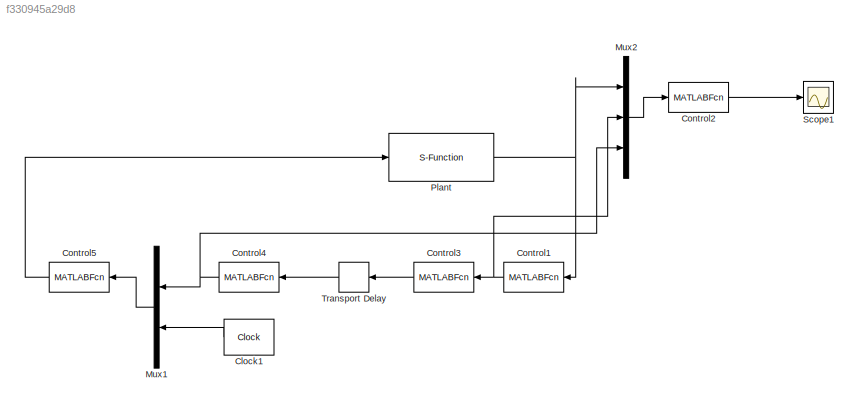
MODEL slx_f330945a29d8
KIND model
CONFIG AbsTol = auto
CONFIG EnableMultiTasking = on
CONFIG FixedStep = Ts
CONFIG MaxStep = auto
CONFIG MinStep = auto
CONFIG RelTol = 1e-3
CONFIG SampleTimeConstraint = Unconstrained
CONFIG Solver = ode4
CONFIG SolverName = ode4
CONFIG StartTime = 0.0
CONFIG StopTime = time_end
BLOCK [Clock] Clock1
  DisplayTime = on
BLOCK [MATLABFcn] Control1
  MATLABFcn = inf_esti
  Ports = [1, 1]
BLOCK [MATLABFcn] Control2
  MATLABFcn = dangerdistance
  Ports = [1, 1]
BLOCK [MATLABFcn] Control3
  MATLABFcn = inf_esti_o
  Ports = [1, 1]
BLOCK [MATLABFcn] Control4
  MATLABFcn = packetloss
  Ports = [1, 1]
BLOCK [MATLABFcn] Control5
  MATLABFcn = collisioncon
  Ports = [1, 1]
BLOCK [Mux] Mux1
  DisplayOption = bar
  Inputs = 2
  Ports = [2, 1]
BLOCK [Mux] Mux2
  DisplayOption = bar
  Inputs = 3
  Ports = [3, 1]
BLOCK [S-Function] Plant
  EnableBusSupport = off
  FunctionName = AttitudeDynamics
  Ports = [1, 1]
  SFcnIsStateOwnerBlock = off
  SFunctionDeploymentMode = off
BLOCK [Scope] Scope1
  Floating = off
  NumInputPorts = 1
  Ports = [1]
  ScopeSpecificationString = Simulink.scopes.TimeScopeBlockCfg('CurrentConfiguration', extmgr.ConfigurationSet(extmgr.Configuration('Core','General UI',true),extmgr.Configuration('Core','Source UI',true),extmgr.Configuration('Sources','WiredSimulink',true,'DataLogging',true,'DataLoggingVariableName','mindis','DataLoggingSaveFormat','Array','DataLoggingDecimation','1','DataLoggingDecimateData',true),extmgr.Configuration('Visua...<+1597ch>
BLOCK [TransportDelay] Transport Delay
  BufferSize = 4096
  DelayTime = taod
  InitialOutput = UavTeam.AllHomePos
  Ports = [1, 1]
LINE Clock1:1 -> Mux1:2
NET Control1:1 -> Control3:1, Mux2:2
LINE Control2:1 -> Scope1:1
LINE Control3:1 -> Transport Delay:1
NET Control4:1 -> Mux1:1, Mux2:3
LINE Control5:1 -> Plant:1
LINE Mux1:1 -> Control5:1
LINE Mux2:1 -> Control2:1
NET Plant:1 -> Control1:1, Mux2:1
LINE Transport Delay:1 -> Control4:1
note: NET lines group one-source signal fan-out (src -> all destinations, sorted); 1:1 wires keep LINE
